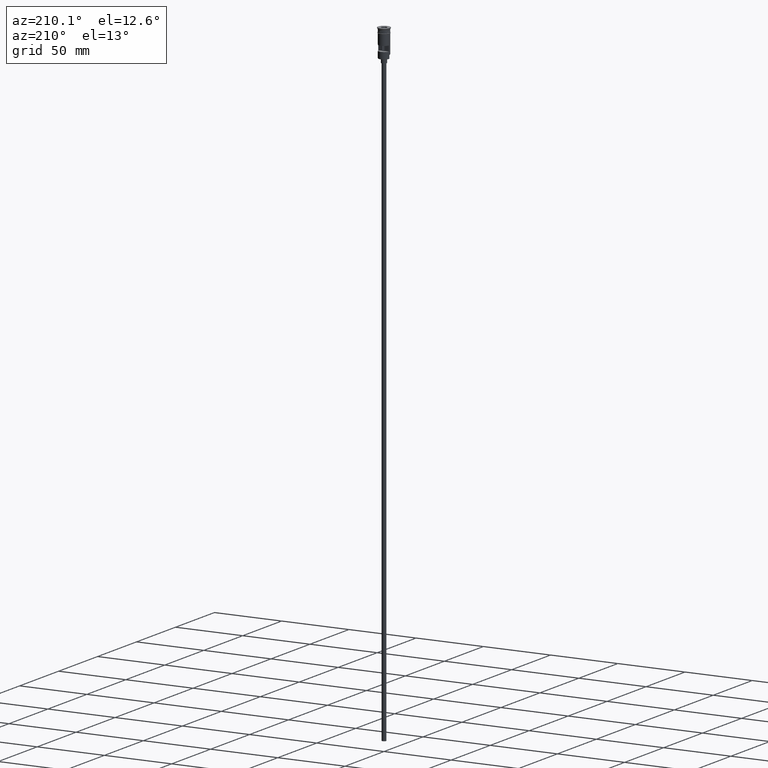
[diagram: clean part render]
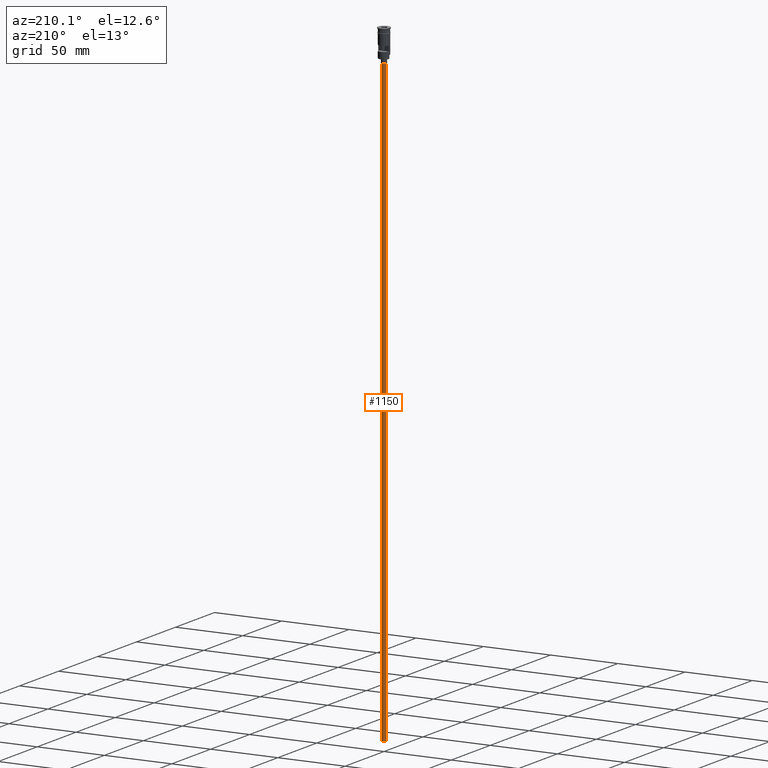
[diagram: same view with one face highlighted and labeled with its STEP entity id]
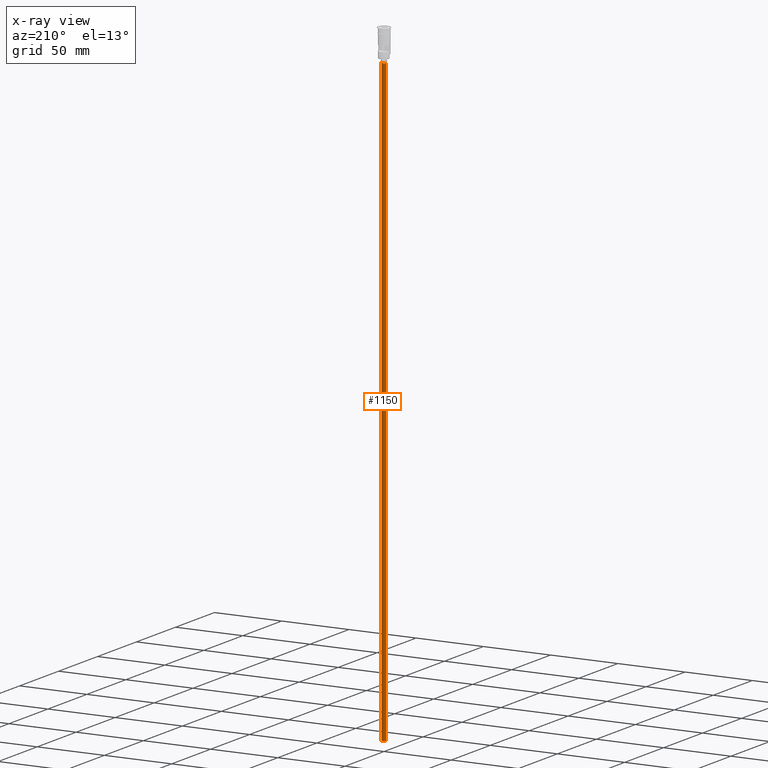
[diagram: x-ray of the same camera — body ghosted, the highlighted face saturated]
A machine part, auxiliary view. The second image highlights one B-rep face of the part: STEP entity #1150.
The next image is the same camera in x-ray: the body ghosted, the highlighted face saturated — about 0% of this face is hidden behind the body in this view.
In plain terms, the highlighted cylindrical surface (edge-blend (fillet) strip) has radius 1.5 mm, axis along (-0, -0, 1).
Its self-contained STEP definition (entity closure, byte-faithful):
#7 = EDGE_CURVE ( 'NONE', #623, #540, #1416, .T. ) ;
#15 = EDGE_CURVE ( 'NONE', #540, #1067, #1088, .T. ) ;
#109 = DIRECTION ( 'NONE',  ( -1.000000000000000000, 0.000000000000000000, 0.000000000000000000 ) ) ;
#258 = EDGE_CURVE ( 'NONE', #623, #414, #791, .T. ) ;
#289 = EDGE_LOOP ( 'NONE', ( #1428, #1471, #644, #1330 ) ) ;
#304 = VECTOR ( 'NONE', #883, 1000.000000000000000 ) ;
#355 = DIRECTION ( 'NONE',  ( -0.000000000000000000, -0.000000000000000000, 1.000000000000000000 ) ) ;
#414 = VERTEX_POINT ( 'NONE', #1548 ) ;
#430 = DIRECTION ( 'NONE',  ( -0.000000000000000000, -0.000000000000000000, 1.000000000000000000 ) ) ;
#498 = CARTESIAN_POINT ( 'NONE',  ( 0.000000000000000000, 0.000000000000000000, -470.5000000000000568 ) ) ;
#540 = VERTEX_POINT ( 'NONE', #621 ) ;
#550 = DIRECTION ( 'NONE',  ( 0.000000000000000000, 0.000000000000000000, -1.000000000000000000 ) ) ;
#621 = CARTESIAN_POINT ( 'NONE',  ( 1.500000000000000222, 0.000000000000000000, -470.5000000000000568 ) ) ;
#623 = VERTEX_POINT ( 'NONE', #907 ) ;
#644 = ORIENTED_EDGE ( 'NONE', *, *, #1188, .T. ) ;
#698 = CARTESIAN_POINT ( 'NONE',  ( 0.000000000000000000, 0.000000000000000000, -23.49999999999999645 ) ) ;
#774 = AXIS2_PLACEMENT_3D ( 'NONE', #498, #847, #109 ) ;
#791 = LINE ( 'NONE', #1278, #304 ) ;
#847 = DIRECTION ( 'NONE',  ( 0.000000000000000000, 0.000000000000000000, -1.000000000000000000 ) ) ;
#883 = DIRECTION ( 'NONE',  ( -0.000000000000000000, -0.000000000000000000, 1.000000000000000000 ) ) ;
#907 = CARTESIAN_POINT ( 'NONE',  ( -1.500000000000000222, 1.836970198721030181E-16, -470.5000000000000568 ) ) ;
#931 = CIRCLE ( 'NONE', #1391, 1.500000000000000222 ) ;
#937 = CARTESIAN_POINT ( 'NONE',  ( 0.000000000000000000, 0.000000000000000000, -470.5000000000000568 ) ) ;
#1067 = VERTEX_POINT ( 'NONE', #1258 ) ;
#1068 = DIRECTION ( 'NONE',  ( -1.000000000000000000, 0.000000000000000000, 0.000000000000000000 ) ) ;
#1088 = LINE ( 'NONE', #1483, #1358 ) ;
#1150 = ADVANCED_FACE ( 'NONE', ( #1298 ), #1168, .T. ) ;
#1168 = CYLINDRICAL_SURFACE ( 'NONE', #1216, 1.500000000000000222 ) ;
#1188 = EDGE_CURVE ( 'NONE', #414, #1067, #931, .T. ) ;
#1216 = AXIS2_PLACEMENT_3D ( 'NONE', #937, #430, #1544 ) ;
#1258 = CARTESIAN_POINT ( 'NONE',  ( 1.500000000000000222, 0.000000000000000000, -23.49999999999999645 ) ) ;
#1278 = CARTESIAN_POINT ( 'NONE',  ( -1.500000000000000222, 1.836970198721030181E-16, -470.5000000000000568 ) ) ;
#1298 = FACE_OUTER_BOUND ( 'NONE', #289, .T. ) ;
#1330 = ORIENTED_EDGE ( 'NONE', *, *, #15, .F. ) ;
#1358 = VECTOR ( 'NONE', #355, 1000.000000000000000 ) ;
#1391 = AXIS2_PLACEMENT_3D ( 'NONE', #698, #550, #1068 ) ;
#1416 = CIRCLE ( 'NONE', #774, 1.500000000000000222 ) ;
#1428 = ORIENTED_EDGE ( 'NONE', *, *, #7, .F. ) ;
#1471 = ORIENTED_EDGE ( 'NONE', *, *, #258, .T. ) ;
#1483 = CARTESIAN_POINT ( 'NONE',  ( 1.500000000000000222, 0.000000000000000000, -470.5000000000000568 ) ) ;
#1544 = DIRECTION ( 'NONE',  ( 1.000000000000000000, 0.000000000000000000, 0.000000000000000000 ) ) ;
#1548 = CARTESIAN_POINT ( 'NONE',  ( -1.500000000000000222, 1.836970198721030181E-16, -23.49999999999999645 ) ) ;